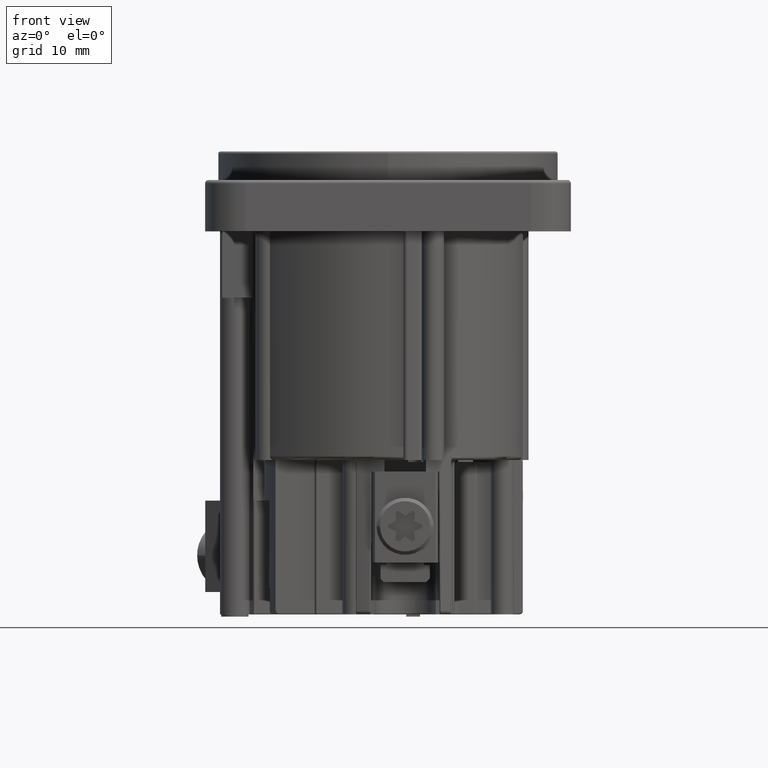
[diagram: clean part render]
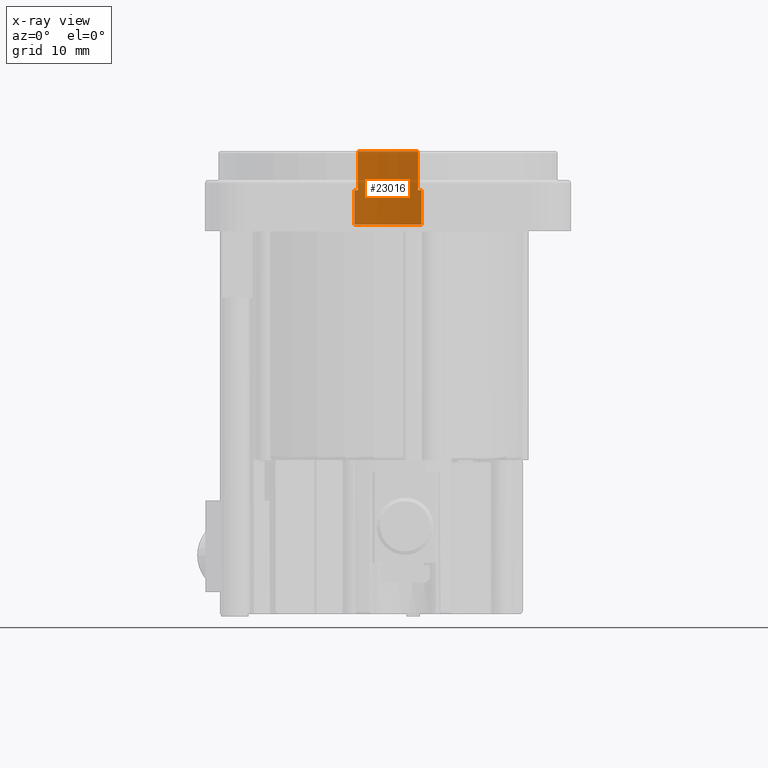
[diagram: x-ray — body ghosted, one internal face saturated and labeled with its STEP entity id]
A machine part, front view, then the same camera in x-ray: the body is ghosted and one INTERNAL B-rep face — a face not visible from any outside direction — is saturated and labeled: STEP entity #23016.
In plain terms, the highlighted cylindrical surface (partial cylindrical patch) has radius 12.9 mm, axis along (0, 0, 1).
Its self-contained STEP definition (entity closure, byte-faithful):
#4914=CARTESIAN_POINT('',(0.E0,0.E0,-3.4E0));
#4915=DIRECTION('',(0.E0,0.E0,1.E0));
#4916=DIRECTION('',(2.270123743982E-1,9.738918738084E-1,0.E0));
#4917=AXIS2_PLACEMENT_3D('',#4914,#4915,#4916);
#4923=DIRECTION('',(0.E0,0.E0,1.E0));
#4924=VECTOR('',#4923,6.E-1);
#4925=CARTESIAN_POINT('',(2.621951219512E0,1.263073124576E1,-3.4E0));
#4926=LINE('',#4925,#4924);
#4945=DIRECTION('',(-2.113041599853E-5,9.735948777176E-5,9.999999950373E-1));
#4946=VECTOR('',#4945,3.000935820966E0);
#4947=CARTESIAN_POINT('',(2.928523040759E0,1.256291300255E1,-6.400935806073E0));
#4948=LINE('',#4947,#4946);
#4969=CARTESIAN_POINT('',(0.E0,0.E0,-6.4E0));
#4970=DIRECTION('',(0.E0,0.E0,-1.E0));
#4971=DIRECTION('',(-2.270123743982E-1,9.738918738084E-1,0.E0));
#4972=AXIS2_PLACEMENT_3D('',#4969,#4970,#4971);
#4994=DIRECTION('',(2.113041601007E-5,9.735948781792E-5,9.999999950373E-1));
#4995=VECTOR('',#4994,3.000935820966E0);
#4996=CARTESIAN_POINT('',(-2.928523040759E0,1.256291300255E1,
-6.400935806074E0));
#4997=LINE('',#4996,#4995);
#4998=CARTESIAN_POINT('',(0.E0,0.E0,-3.4E0));
#4999=DIRECTION('',(0.E0,0.E0,1.E0));
#5000=DIRECTION('',(-2.032520325203E-1,9.791264531593E-1,0.E0));
#5001=AXIS2_PLACEMENT_3D('',#4998,#4999,#5000);
#5016=DIRECTION('',(2.590520390792E-14,0.E0,1.E0));
#5017=VECTOR('',#5016,6.E-1);
#5018=CARTESIAN_POINT('',(-2.621951219512E0,1.263073124576E1,-3.4E0));
#5019=LINE('',#5018,#5017);
#5156=CARTESIAN_POINT('',(0.E0,0.E0,0.E0));
#5157=DIRECTION('',(0.E0,0.E0,-1.E0));
#5158=DIRECTION('',(-2.032520325203E-1,9.791264531593E-1,0.E0));
#5159=AXIS2_PLACEMENT_3D('',#5156,#5157,#5158);
#5203=DIRECTION('',(0.E0,0.E0,1.E0));
#5204=VECTOR('',#5203,2.8E0);
#5205=CARTESIAN_POINT('',(-2.621951219512E0,1.263073124576E1,-2.8E0));
#5206=LINE('',#5205,#5204);
#5232=DIRECTION('',(0.E0,0.E0,1.E0));
#5233=VECTOR('',#5232,2.8E0);
#5234=CARTESIAN_POINT('',(2.621951219512E0,1.263073124576E1,-2.8E0));
#5235=LINE('',#5234,#5233);
#15780=CARTESIAN_POINT('',(2.621951219512E0,1.263073124576E1,-3.4E0));
#15781=CARTESIAN_POINT('',(2.621951219512E0,1.263073124576E1,-2.8E0));
#15782=VERTEX_POINT('',#15780);
#15783=VERTEX_POINT('',#15781);
#15784=CARTESIAN_POINT('',(-2.621951219512E0,1.263073124576E1,-3.4E0));
#15785=VERTEX_POINT('',#15784);
#15790=CARTESIAN_POINT('',(-2.621951219512E0,1.263073124576E1,0.E0));
#15791=CARTESIAN_POINT('',(2.621951219512E0,1.263073124576E1,0.E0));
#15792=VERTEX_POINT('',#15790);
#15793=VERTEX_POINT('',#15791);
#15794=CARTESIAN_POINT('',(-2.621951219512E0,1.263073124576E1,-2.8E0));
#15795=VERTEX_POINT('',#15794);
#15832=CARTESIAN_POINT('',(-2.928459629737E0,1.256320517213E1,-3.4E0));
#15834=VERTEX_POINT('',#15832);
#15836=CARTESIAN_POINT('',(-2.928523040759E0,1.256291300255E1,
-6.400935806074E0));
#15837=VERTEX_POINT('',#15836);
#15849=CARTESIAN_POINT('',(2.928459629737E0,1.256320517213E1,-3.4E0));
#15850=VERTEX_POINT('',#15849);
#15851=CARTESIAN_POINT('',(2.928523040759E0,1.256291300255E1,
-6.400935806073E0));
#15852=VERTEX_POINT('',#15851);
#22992=CARTESIAN_POINT('',(0.E0,0.E0,0.E0));
#22993=DIRECTION('',(0.E0,0.E0,1.E0));
#22994=DIRECTION('',(1.E0,0.E0,0.E0));
#22995=AXIS2_PLACEMENT_3D('',#22992,#22993,#22994);
#22996=CYLINDRICAL_SURFACE('',#22995,1.29E1);
#22998=ORIENTED_EDGE('',*,*,#22997,.F.);
#23000=ORIENTED_EDGE('',*,*,#22999,.T.);
#23001=ORIENTED_EDGE('',*,*,#22974,.T.);
#23002=ORIENTED_EDGE('',*,*,#22930,.T.);
#23003=ORIENTED_EDGE('',*,*,#22944,.T.);
#23005=ORIENTED_EDGE('',*,*,#23004,.T.);
#23007=ORIENTED_EDGE('',*,*,#23006,.F.);
#23009=ORIENTED_EDGE('',*,*,#23008,.F.);
#23011=ORIENTED_EDGE('',*,*,#23010,.F.);
#23013=ORIENTED_EDGE('',*,*,#23012,.T.);
#23014=EDGE_LOOP('',(#22998,#23000,#23001,#23002,#23003,#23005,#23007,#23009,
#23011,#23013));
#23015=FACE_OUTER_BOUND('',#23014,.F.);
#4918=CIRCLE('',#4917,1.29E1);
#4973=CIRCLE('',#4972,1.29E1);
#5002=CIRCLE('',#5001,1.29E1);
#5160=CIRCLE('',#5159,1.29E1);
#22930=EDGE_CURVE('',#15850,#15782,#4918,.T.);
#22944=EDGE_CURVE('',#15782,#15783,#4926,.T.);
#22974=EDGE_CURVE('',#15852,#15850,#4948,.T.);
#22997=EDGE_CURVE('',#15837,#15834,#4997,.T.);
#22999=EDGE_CURVE('',#15837,#15852,#4973,.T.);
#23004=EDGE_CURVE('',#15783,#15793,#5235,.T.);
#23006=EDGE_CURVE('',#15792,#15793,#5160,.T.);
#23008=EDGE_CURVE('',#15795,#15792,#5206,.T.);
#23010=EDGE_CURVE('',#15785,#15795,#5019,.T.);
#23012=EDGE_CURVE('',#15785,#15834,#5002,.T.);
#23016=ADVANCED_FACE('',(#23015),#22996,.T.);